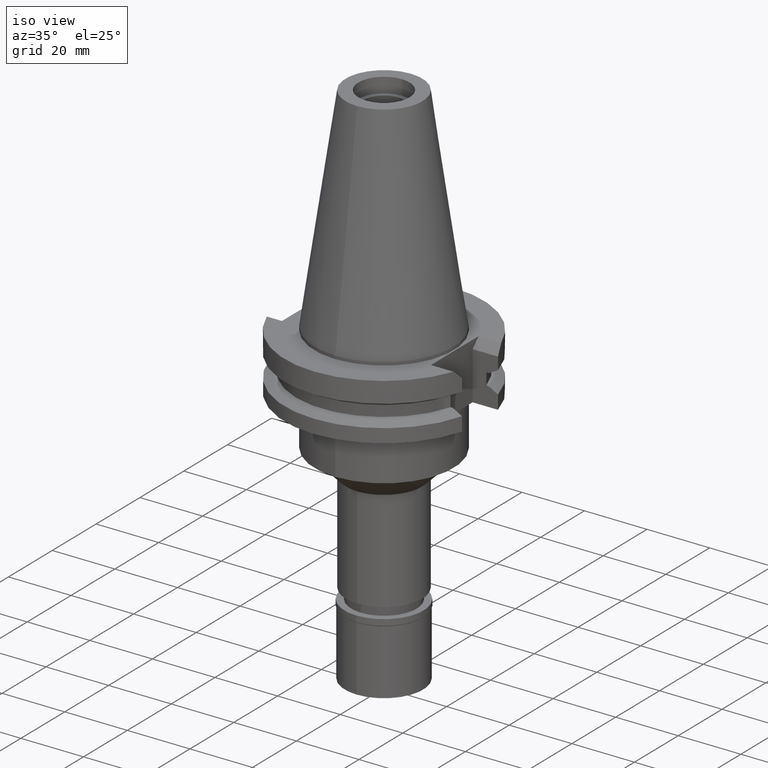
[diagram: clean part render]
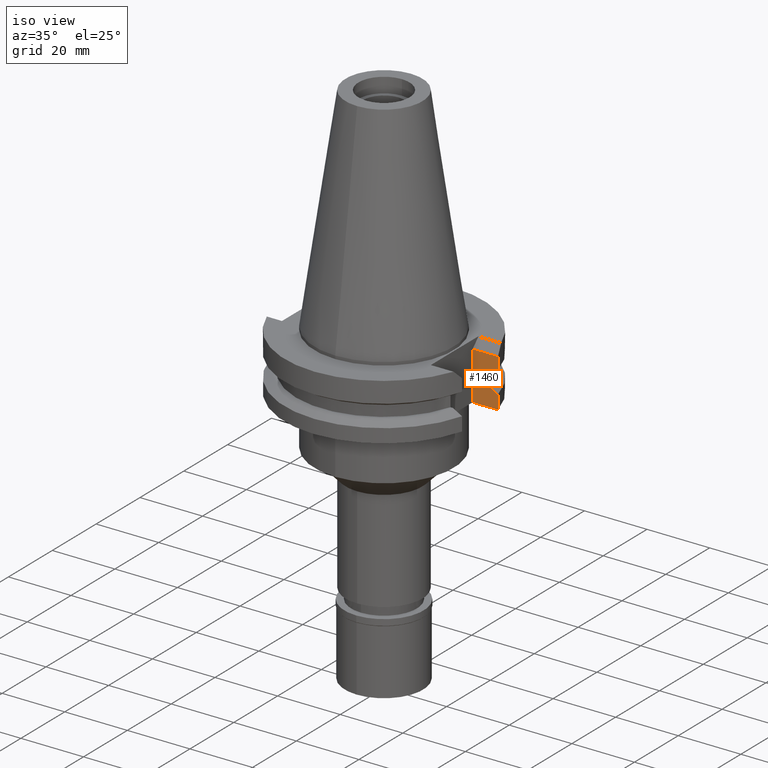
[diagram: same view with one face highlighted and labeled with its STEP entity id]
A machine part, iso view. The second image highlights one B-rep face of the part: STEP entity #1460.
In plain terms, the highlighted planar face has unit normal (0, 1, 0).
Its self-contained STEP definition (entity closure, byte-faithful):
#28 = CARTESIAN_POINT ( 'NONE',  ( 27.78617704760999629, 8.189999360193001010, -13.04749999999999943 ) ) ;
#88 = ORIENTED_EDGE ( 'NONE', *, *, #3234, .T. ) ;
#104 = VERTEX_POINT ( 'NONE', #2108 ) ;
#181 = VECTOR ( 'NONE', #1975, 1000.000000000000000 ) ;
#223 = B_SPLINE_CURVE_WITH_KNOTS ( 'NONE', 3,
 ( #3237, #629, #411, #1442 ),
 .UNSPECIFIED., .F., .F.,
 ( 4, 4 ),
 ( 0.0000000000000000000, 1.000000000000000000 ),
 .UNSPECIFIED. ) ;
#226 = CARTESIAN_POINT ( 'NONE',  ( 27.78617704686999801, 8.189999360229000658, -9.207500000000999663 ) ) ;
#275 = CARTESIAN_POINT ( 'NONE',  ( 30.67550162588999640, 8.189999999999999503, -19.05000000000000071 ) ) ;
#315 = EDGE_CURVE ( 'NONE', #774, #981, #2994, .T. ) ;
#322 = FACE_OUTER_BOUND ( 'NONE', #1017, .T. ) ;
#350 = LINE ( 'NONE', #1597, #477 ) ;
#354 = EDGE_CURVE ( 'NONE', #931, #2870, #1920, .T. ) ;
#373 = VECTOR ( 'NONE', #2666, 1000.000000000000000 ) ;
#406 = VECTOR ( 'NONE', #2946, 1000.000000000000227 ) ;
#411 = CARTESIAN_POINT ( 'NONE',  ( 28.70626004096992645, 8.189998719044224273, -8.697957594223481692 ) ) ;
#416 = CARTESIAN_POINT ( 'NONE',  ( 26.96361066326000255, 8.189999999999999503, -9.207499999999999574 ) ) ;
#477 = VECTOR ( 'NONE', #1126, 1000.000000000000000 ) ;
#496 = ORIENTED_EDGE ( 'NONE', *, *, #2406, .T. ) ;
#567 = CARTESIAN_POINT ( 'NONE',  ( 30.67550165945999652, 8.189999874270000646, -7.601334354499000412 ) ) ;
#580 = VECTOR ( 'NONE', #1338, 1000.000000000000000 ) ;
#606 = VERTEX_POINT ( 'NONE', #1792 ) ;
#609 = PLANE ( 'NONE',  #2506 ) ;
#617 = B_SPLINE_CURVE_WITH_KNOTS ( 'NONE', 3,
 ( #1234, #2263, #986, #2000, #3029, #665 ),
 .UNSPECIFIED., .F., .F.,
 ( 4, 1, 1, 4 ),
 ( 0.0000000000000000000, 0.3333333333333000081, 0.6666666666667000474, 1.000000000000000000 ),
 .UNSPECIFIED. ) ;
#629 = CARTESIAN_POINT ( 'NONE',  ( 29.66936067373685404, 8.189999748634065213, -8.162570072454135683 ) ) ;
#665 = CARTESIAN_POINT ( 'NONE',  ( 27.78617704760999629, 8.189999360193001010, -13.04749999999999943 ) ) ;
#707 = CARTESIAN_POINT ( 'NONE',  ( 22.57000000000000028, 8.189999999999999503, -19.05000000000000071 ) ) ;
#774 = VERTEX_POINT ( 'NONE', #275 ) ;
#788 = VERTEX_POINT ( 'NONE', #567 ) ;
#916 = CARTESIAN_POINT ( 'NONE',  ( 26.96361066326000255, 8.189999999999999503, -13.04749999999999943 ) ) ;
#931 = VERTEX_POINT ( 'NONE', #2716 ) ;
#940 = VERTEX_POINT ( 'NONE', #416 ) ;
#959 = CARTESIAN_POINT ( 'NONE',  ( 30.67550162588999640, 8.189999999999999503, -3.700000000000000178 ) ) ;
#981 = VERTEX_POINT ( 'NONE', #1176 ) ;
#986 = CARTESIAN_POINT ( 'NONE',  ( 29.69468757197999764, 8.189999973361000940, -14.10694918375999940 ) ) ;
#1017 = EDGE_LOOP ( 'NONE', ( #1230, #2532, #1418, #1534, #1299, #1674, #1341, #88, #496, #2746 ) ) ;
#1097 = LINE ( 'NONE', #2923, #2696 ) ;
#1126 = DIRECTION ( 'NONE',  ( 0.0000000000000000000, 0.0000000000000000000, 1.000000000000000000 ) ) ;
#1176 = CARTESIAN_POINT ( 'NONE',  ( 30.67550165945999652, 8.189999874282001713, -14.65366564564999941 ) ) ;
#1230 = ORIENTED_EDGE ( 'NONE', *, *, #315, .T. ) ;
#1234 = CARTESIAN_POINT ( 'NONE',  ( 30.67550165945999652, 8.189999874282001713, -14.65366564564999941 ) ) ;
#1238 = LINE ( 'NONE', #707, #580 ) ;
#1299 = ORIENTED_EDGE ( 'NONE', *, *, #1304, .T. ) ;
#1304 = EDGE_CURVE ( 'NONE', #940, #1779, #2612, .T. ) ;
#1338 = DIRECTION ( 'NONE',  ( 1.000000000000000000, 0.0000000000000000000, 0.0000000000000000000 ) ) ;
#1341 = ORIENTED_EDGE ( 'NONE', *, *, #2531, .T. ) ;
#1375 = VECTOR ( 'NONE', #2430, 1000.000000000000000 ) ;
#1398 = DIRECTION ( 'NONE',  ( -8.604469633308997870E-09, 3.222744808477997622E-08, 0.9999999999999994449 ) ) ;
#1418 = ORIENTED_EDGE ( 'NONE', *, *, #354, .F. ) ;
#1442 = CARTESIAN_POINT ( 'NONE',  ( 27.78617704686999801, 8.189999360229000658, -9.207500000000999663 ) ) ;
#1452 = VERTEX_POINT ( 'NONE', #3122 ) ;
#1460 = ADVANCED_FACE ( 'NONE', ( #322 ), #609, .F. ) ;
#1493 = EDGE_CURVE ( 'NONE', #931, #940, #350, .T. ) ;
#1533 = EDGE_CURVE ( 'NONE', #788, #1779, #223, .T. ) ;
#1534 = ORIENTED_EDGE ( 'NONE', *, *, #1493, .T. ) ;
#1597 = CARTESIAN_POINT ( 'NONE',  ( 26.96361066326000255, 8.189999999999999503, -13.04749999999999943 ) ) ;
#1636 = CARTESIAN_POINT ( 'NONE',  ( 30.67550162588999640, 8.189999999999999503, -19.05000000000000071 ) ) ;
#1674 = ORIENTED_EDGE ( 'NONE', *, *, #1533, .F. ) ;
#1779 = VERTEX_POINT ( 'NONE', #226 ) ;
#1792 = CARTESIAN_POINT ( 'NONE',  ( 30.67550162588999640, 8.189999999999999503, -3.700000000000000178 ) ) ;
#1818 = VECTOR ( 'NONE', #2590, 1000.000000000000227 ) ;
#1829 = DIRECTION ( 'NONE',  ( -0.0000000000000000000, 1.000000000000000000, 0.0000000000000000000 ) ) ;
#1848 = EDGE_CURVE ( 'NONE', #1452, #774, #1238, .T. ) ;
#1920 = LINE ( 'NONE', #916, #406 ) ;
#1975 = DIRECTION ( 'NONE',  ( -1.000000000000000000, 0.0000000000000000000, 0.0000000000000000000 ) ) ;
#2000 = CARTESIAN_POINT ( 'NONE',  ( 28.73158913621999844, 8.190000281814000971, -13.57154194062999863 ) ) ;
#2108 = CARTESIAN_POINT ( 'NONE',  ( 22.57000000000000028, 8.189999999999999503, -3.700000000000000178 ) ) ;
#2145 = EDGE_CURVE ( 'NONE', #981, #2870, #617, .T. ) ;
#2263 = CARTESIAN_POINT ( 'NONE',  ( 30.34687526745000241, 8.189999874282001713, -14.47035412652000019 ) ) ;
#2333 = DIRECTION ( 'NONE',  ( 1.000000000000000000, 0.0000000000000000000, 0.0000000000000000000 ) ) ;
#2400 = LINE ( 'NONE', #2943, #373 ) ;
#2406 = EDGE_CURVE ( 'NONE', #104, #1452, #2400, .T. ) ;
#2424 = LINE ( 'NONE', #959, #181 ) ;
#2430 = DIRECTION ( 'NONE',  ( 7.635005923530985990E-09, -2.859621405680998575E-08, 0.9999999999999995559 ) ) ;
#2506 = AXIS2_PLACEMENT_3D ( 'NONE', #2904, #1829, #2333 ) ;
#2531 = EDGE_CURVE ( 'NONE', #788, #606, #1097, .T. ) ;
#2532 = ORIENTED_EDGE ( 'NONE', *, *, #2145, .T. ) ;
#2590 = DIRECTION ( 'NONE',  ( 0.9999999999996974642, -7.777749568613984016E-07, -1.025776782916998203E-12 ) ) ;
#2612 = LINE ( 'NONE', #2884, #1818 ) ;
#2666 = DIRECTION ( 'NONE',  ( 0.0000000000000000000, 0.0000000000000000000, -1.000000000000000000 ) ) ;
#2696 = VECTOR ( 'NONE', #1398, 1000.000000000000114 ) ;
#2716 = CARTESIAN_POINT ( 'NONE',  ( 26.96361066326000255, 8.189999999999999503, -13.04749999999999943 ) ) ;
#2746 = ORIENTED_EDGE ( 'NONE', *, *, #1848, .T. ) ;
#2870 = VERTEX_POINT ( 'NONE', #28 ) ;
#2884 = CARTESIAN_POINT ( 'NONE',  ( 26.96361066326000255, 8.189999999999999503, -9.207499999999999574 ) ) ;
#2904 = CARTESIAN_POINT ( 'NONE',  ( 22.57000000000000028, 8.189999999999999503, -19.05000000000000071 ) ) ;
#2923 = CARTESIAN_POINT ( 'NONE',  ( 30.67550165945999652, 8.189999874270000646, -7.601334354499000412 ) ) ;
#2943 = CARTESIAN_POINT ( 'NONE',  ( 22.57000000000000028, 8.189999999999999503, -3.700000000000000178 ) ) ;
#2946 = DIRECTION ( 'NONE',  ( 0.9999999999996974642, -7.778183929547983052E-07, 4.038321225980991579E-13 ) ) ;
#2994 = LINE ( 'NONE', #1636, #1375 ) ;
#3029 = CARTESIAN_POINT ( 'NONE',  ( 28.09962546405000339, 8.189999360193001010, -13.22108613556000023 ) ) ;
#3122 = CARTESIAN_POINT ( 'NONE',  ( 22.57000000000000028, 8.189999999999999503, -19.05000000000000071 ) ) ;
#3234 = EDGE_CURVE ( 'NONE', #606, #104, #2424, .T. ) ;
#3237 = CARTESIAN_POINT ( 'NONE',  ( 30.67550165945999652, 8.189999874270000646, -7.601334354499000412 ) ) ;